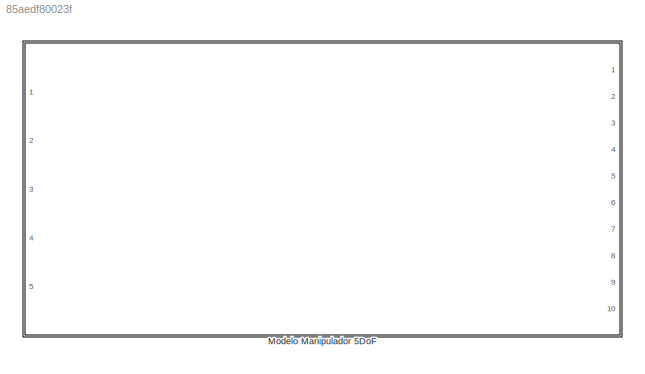
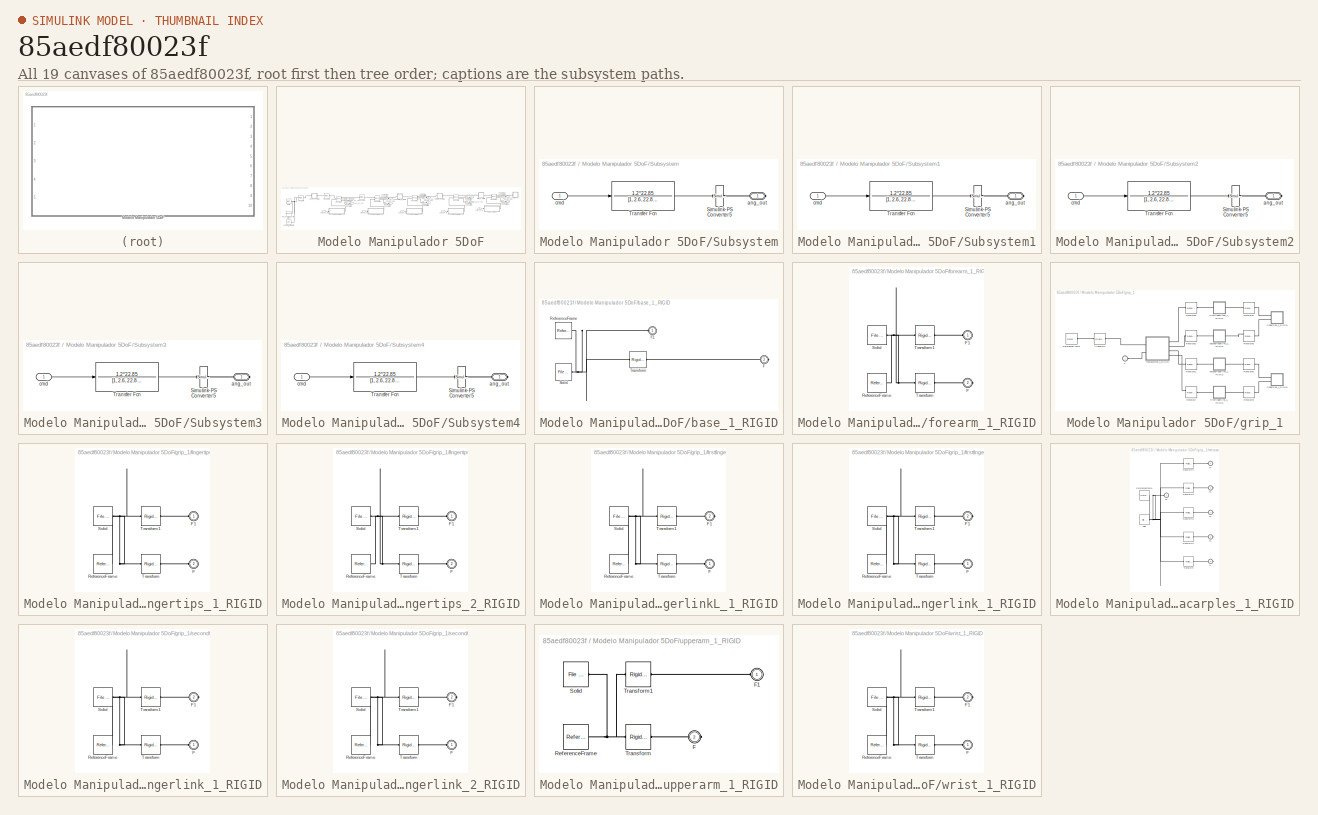
[diagram: thumbnail index - all 19 canvases of the model, root first then tree order]
MODEL slx_85aedf80023f
KIND model
CONFIG AbsTol = auto
CONFIG EnableMultiTasking = off
CONFIG FixedStep = 0.001
CONFIG MaxStep = auto
CONFIG MinStep = auto
CONFIG RelTol = 1e-3
CONFIG SampleTimeConstraint = Unconstrained
CONFIG SolverName = VariableStepAuto
CONFIG StartTime = 0.0
CONFIG StopTime = 40
WORKSPACE source: external: MATLAB File  (data not in archive)
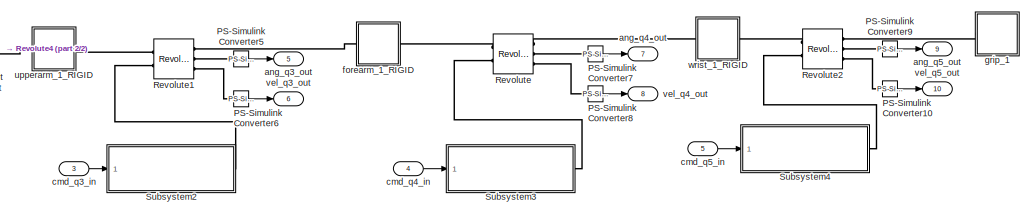
[diagram: Modelo Manipulador 5DoF - part 1/2, middle right region]
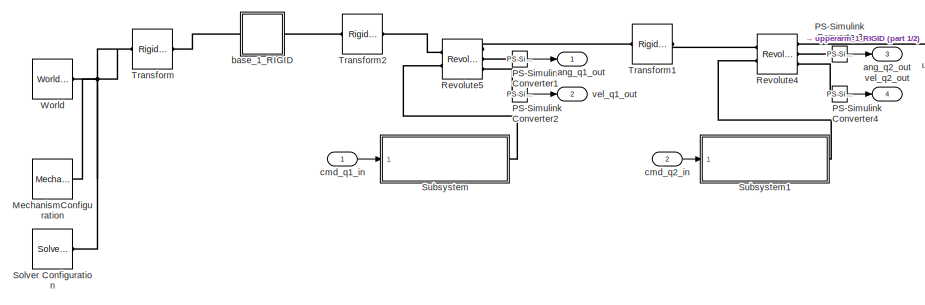
[diagram: Modelo Manipulador 5DoF - part 2/2, left side, full height]
BLOCK [SubSystem] Modelo Manipulador 5DoF
  Ports = [5, 10]
BLOCK [Reference] Modelo Manipulador 5DoF/MechanismConfiguration  REF=sm_lib/Utilities/Mechanism
Configuration
  Ports = [0, 0, 0, 0, 0, 0, 1]
  SourceBlock = sm_lib/Utilities/Mechanism\nConfiguration
  SourceType = Mechanism\nConfiguration
BLOCK [Reference] Modelo Manipulador 5DoF/PS-Simulink Converter1  REF=nesl_utility/PS-Simulink
Converter
  Ports = [0, 1, 0, 0, 0, 1]
  SourceBlock = nesl_utility/PS-Simulink\nConverter
  SourceType = PS-Simulink\nConverter
BLOCK [Reference] Modelo Manipulador 5DoF/PS-Simulink Converter10  REF=nesl_utility/PS-Simulink
Converter
  Ports = [0, 1, 0, 0, 0, 1]
  SourceBlock = nesl_utility/PS-Simulink\nConverter
  SourceType = PS-Simulink\nConverter
BLOCK [Reference] Modelo Manipulador 5DoF/PS-Simulink Converter2  REF=nesl_utility/PS-Simulink
Converter
  Ports = [0, 1, 0, 0, 0, 1]
  SourceBlock = nesl_utility/PS-Simulink\nConverter
  SourceType = PS-Simulink\nConverter
BLOCK [Reference] Modelo Manipulador 5DoF/PS-Simulink Converter3  REF=nesl_utility/PS-Simulink
Converter
  Ports = [0, 1, 0, 0, 0, 1]
  SourceBlock = nesl_utility/PS-Simulink\nConverter
  SourceType = PS-Simulink\nConverter
BLOCK [Reference] Modelo Manipulador 5DoF/PS-Simulink Converter4  REF=nesl_utility/PS-Simulink
Converter
  Ports = [0, 1, 0, 0, 0, 1]
  SourceBlock = nesl_utility/PS-Simulink\nConverter
  SourceType = PS-Simulink\nConverter
BLOCK [Reference] Modelo Manipulador 5DoF/PS-Simulink Converter5  REF=nesl_utility/PS-Simulink
Converter
  Ports = [0, 1, 0, 0, 0, 1]
  SourceBlock = nesl_utility/PS-Simulink\nConverter
  SourceType = PS-Simulink\nConverter
BLOCK [Reference] Modelo Manipulador 5DoF/PS-Simulink Converter6  REF=nesl_utility/PS-Simulink
Converter
  Ports = [0, 1, 0, 0, 0, 1]
  SourceBlock = nesl_utility/PS-Simulink\nConverter
  SourceType = PS-Simulink\nConverter
BLOCK [Reference] Modelo Manipulador 5DoF/PS-Simulink Converter7  REF=nesl_utility/PS-Simulink
Converter
  Ports = [0, 1, 0, 0, 0, 1]
  SourceBlock = nesl_utility/PS-Simulink\nConverter
  SourceType = PS-Simulink\nConverter
BLOCK [Reference] Modelo Manipulador 5DoF/PS-Simulink Converter8  REF=nesl_utility/PS-Simulink
Converter
  Ports = [0, 1, 0, 0, 0, 1]
  SourceBlock = nesl_utility/PS-Simulink\nConverter
  SourceType = PS-Simulink\nConverter
BLOCK [Reference] Modelo Manipulador 5DoF/PS-Simulink Converter9  REF=nesl_utility/PS-Simulink
Converter
  Ports = [0, 1, 0, 0, 0, 1]
  SourceBlock = nesl_utility/PS-Simulink\nConverter
  SourceType = PS-Simulink\nConverter
BLOCK [Reference] Modelo Manipulador 5DoF/Revolute  REF=sm_lib/Joints/Revolute Joint
  Ports = [0, 0, 0, 0, 0, 2, 3]
  SourceBlock = sm_lib/Joints/Revolute Joint
  SourceType = Revolute Joint
BLOCK [Reference] Modelo Manipulador 5DoF/Revolute1  REF=sm_lib/Joints/Revolute Joint
  Ports = [0, 0, 0, 0, 0, 2, 3]
  SourceBlock = sm_lib/Joints/Revolute Joint
  SourceType = Revolute Joint
BLOCK [Reference] Modelo Manipulador 5DoF/Revolute2  REF=sm_lib/Joints/Revolute Joint
  Ports = [0, 0, 0, 0, 0, 2, 3]
  SourceBlock = sm_lib/Joints/Revolute Joint
  SourceType = Revolute Joint
BLOCK [Reference] Modelo Manipulador 5DoF/Revolute4  REF=sm_lib/Joints/Revolute Joint
  Ports = [0, 0, 0, 0, 0, 2, 3]
  SourceBlock = sm_lib/Joints/Revolute Joint
  SourceType = Revolute Joint
BLOCK [Reference] Modelo Manipulador 5DoF/Revolute5  REF=sm_lib/Joints/Revolute Joint
  Ports = [0, 0, 0, 0, 0, 2, 3]
  SourceBlock = sm_lib/Joints/Revolute Joint
  SourceType = Revolute Joint
BLOCK [Reference] Modelo Manipulador 5DoF/Solver Configuration  REF=nesl_utility/Solver
Configuration
  Ports = [0, 0, 0, 0, 0, 0, 1]
  SourceBlock = nesl_utility/Solver\nConfiguration
  SourceType = Solver\nConfiguration
BLOCK [SubSystem] Modelo Manipulador 5DoF/Subsystem
  Ports = [1, 0, 0, 0, 0, 0, 1]
BLOCK [Reference] Modelo Manipulador 5DoF/Subsystem/Simulink-PS Converter5  REF=nesl_utility/Simulink-PS
Converter
  Ports = [1, 0, 0, 0, 0, 0, 1]
  SourceBlock = nesl_utility/Simulink-PS\nConverter
  SourceType = Simulink-PS\nConverter
BLOCK [TransferFcn] Modelo Manipulador 5DoF/Subsystem/Transfer Fcn
  Denominator = [1, 2.6, 22.85]
  Numerator = 1.2*22.85
BLOCK [PMIOPort] Modelo Manipulador 5DoF/Subsystem/ang_out
  Side = Right
BLOCK [Inport] Modelo Manipulador 5DoF/Subsystem/cmd
BLOCK [SubSystem] Modelo Manipulador 5DoF/Subsystem1
  Ports = [1, 0, 0, 0, 0, 0, 1]
BLOCK [Reference] Modelo Manipulador 5DoF/Subsystem1/Simulink-PS Converter5  REF=nesl_utility/Simulink-PS
Converter
  Ports = [1, 0, 0, 0, 0, 0, 1]
  SourceBlock = nesl_utility/Simulink-PS\nConverter
  SourceType = Simulink-PS\nConverter
BLOCK [TransferFcn] Modelo Manipulador 5DoF/Subsystem1/Transfer Fcn
  Denominator = [1, 2.6, 22.85]
  Numerator = 1.2*22.85
BLOCK [PMIOPort] Modelo Manipulador 5DoF/Subsystem1/ang_out
  Side = Right
BLOCK [Inport] Modelo Manipulador 5DoF/Subsystem1/cmd
BLOCK [SubSystem] Modelo Manipulador 5DoF/Subsystem2
  Ports = [1, 0, 0, 0, 0, 0, 1]
BLOCK [Reference] Modelo Manipulador 5DoF/Subsystem2/Simulink-PS Converter5  REF=nesl_utility/Simulink-PS
Converter
  Ports = [1, 0, 0, 0, 0, 0, 1]
  SourceBlock = nesl_utility/Simulink-PS\nConverter
  SourceType = Simulink-PS\nConverter
BLOCK [TransferFcn] Modelo Manipulador 5DoF/Subsystem2/Transfer Fcn
  Denominator = [1, 2.6, 22.85]
  Numerator = 1.2*22.85
BLOCK [PMIOPort] Modelo Manipulador 5DoF/Subsystem2/ang_out
  Side = Right
BLOCK [Inport] Modelo Manipulador 5DoF/Subsystem2/cmd
BLOCK [SubSystem] Modelo Manipulador 5DoF/Subsystem3
  Ports = [1, 0, 0, 0, 0, 0, 1]
BLOCK [Reference] Modelo Manipulador 5DoF/Subsystem3/Simulink-PS Converter5  REF=nesl_utility/Simulink-PS
Converter
  Ports = [1, 0, 0, 0, 0, 0, 1]
  SourceBlock = nesl_utility/Simulink-PS\nConverter
  SourceType = Simulink-PS\nConverter
BLOCK [TransferFcn] Modelo Manipulador 5DoF/Subsystem3/Transfer Fcn
  Denominator = [1, 2.6, 22.85]
  Numerator = 1.2*22.85
BLOCK [PMIOPort] Modelo Manipulador 5DoF/Subsystem3/ang_out
  Side = Right
BLOCK [Inport] Modelo Manipulador 5DoF/Subsystem3/cmd
BLOCK [SubSystem] Modelo Manipulador 5DoF/Subsystem4
  Ports = [1, 0, 0, 0, 0, 0, 1]
BLOCK [Reference] Modelo Manipulador 5DoF/Subsystem4/Simulink-PS Converter5  REF=nesl_utility/Simulink-PS
Converter
  Ports = [1, 0, 0, 0, 0, 0, 1]
  SourceBlock = nesl_utility/Simulink-PS\nConverter
  SourceType = Simulink-PS\nConverter
BLOCK [TransferFcn] Modelo Manipulador 5DoF/Subsystem4/Transfer Fcn
  Denominator = [1, 2.6, 22.85]
  Numerator = 1.2*22.85
BLOCK [PMIOPort] Modelo Manipulador 5DoF/Subsystem4/ang_out
  Side = Right
BLOCK [Inport] Modelo Manipulador 5DoF/Subsystem4/cmd
BLOCK [Reference] Modelo Manipulador 5DoF/Transform  REF=sm_lib/Frames and
Transforms/Rigid
Transform
  Ports = [0, 0, 0, 0, 0, 1, 1]
  SourceBlock = sm_lib/Frames and\nTransforms/Rigid\nTransform
  SourceType = Rigid\nTransform
BLOCK [Reference] Modelo Manipulador 5DoF/Transform1  REF=sm_lib/Frames and
Transforms/Rigid
Transform
  Ports = [0, 0, 0, 0, 0, 1, 1]
  SourceBlock = sm_lib/Frames and\nTransforms/Rigid\nTransform
  SourceType = Rigid\nTransform
BLOCK [Reference] Modelo Manipulador 5DoF/Transform2  REF=sm_lib/Frames and
Transforms/Rigid
Transform
  Ports = [0, 0, 0, 0, 0, 1, 1]
  SourceBlock = sm_lib/Frames and\nTransforms/Rigid\nTransform
  SourceType = Rigid\nTransform
BLOCK [Reference] Modelo Manipulador 5DoF/World  REF=sm_lib/Frames and
Transforms/World Frame
  Ports = [0, 0, 0, 0, 0, 0, 1]
  SourceBlock = sm_lib/Frames and\nTransforms/World Frame
  SourceType = World Frame
BLOCK [Outport] Modelo Manipulador 5DoF/ang_q1_out
BLOCK [Outport] Modelo Manipulador 5DoF/ang_q2_out
  Port = 3
BLOCK [Outport] Modelo Manipulador 5DoF/ang_q3_out
  Port = 5
BLOCK [Outport] Modelo Manipulador 5DoF/ang_q4_out
  Port = 7
BLOCK [Outport] Modelo Manipulador 5DoF/ang_q5_out
  Port = 9
BLOCK [SubSystem] Modelo Manipulador 5DoF/base_1_RIGID
  Ports = [0, 0, 0, 0, 0, 1, 1]
BLOCK [PMIOPort] Modelo Manipulador 5DoF/base_1_RIGID/F
  Port = 2
  Side = Right
BLOCK [PMIOPort] Modelo Manipulador 5DoF/base_1_RIGID/F1
  Side = Left
BLOCK [Reference] Modelo Manipulador 5DoF/base_1_RIGID/ReferenceFrame  REF=sm_lib/Frames and
Transforms/Reference
Frame
  Ports = [0, 0, 0, 0, 0, 0, 1]
  SourceBlock = sm_lib/Frames and\nTransforms/Reference\nFrame
  SourceType = Reference\nFrame
BLOCK [Reference] Modelo Manipulador 5DoF/base_1_RIGID/Solid  REF=sm_lib/Body Elements/File Solid
  Ports = [0, 0, 0, 0, 0, 0, 1]
  SourceBlock = sm_lib/Body Elements/File Solid
  SourceType = File Solid
BLOCK [Reference] Modelo Manipulador 5DoF/base_1_RIGID/Transform  REF=sm_lib/Frames and
Transforms/Rigid
Transform
  Ports = [0, 0, 0, 0, 0, 1, 1]
  SourceBlock = sm_lib/Frames and\nTransforms/Rigid\nTransform
  SourceType = Rigid\nTransform
BLOCK [Inport] Modelo Manipulador 5DoF/cmd_q1_in
BLOCK [Inport] Modelo Manipulador 5DoF/cmd_q2_in
  Port = 2
BLOCK [Inport] Modelo Manipulador 5DoF/cmd_q3_in
  Port = 3
BLOCK [Inport] Modelo Manipulador 5DoF/cmd_q4_in
  Port = 4
BLOCK [Inport] Modelo Manipulador 5DoF/cmd_q5_in
  Port = 5
BLOCK [SubSystem] Modelo Manipulador 5DoF/forearm_1_RIGID
  Ports = [0, 0, 0, 0, 0, 1, 1]
BLOCK [PMIOPort] Modelo Manipulador 5DoF/forearm_1_RIGID/F
  Port = 2
  Side = Right
BLOCK [PMIOPort] Modelo Manipulador 5DoF/forearm_1_RIGID/F1
  Side = Left
BLOCK [Reference] Modelo Manipulador 5DoF/forearm_1_RIGID/ReferenceFrame  REF=sm_lib/Frames and
Transforms/Reference
Frame
  Ports = [0, 0, 0, 0, 0, 0, 1]
  SourceBlock = sm_lib/Frames and\nTransforms/Reference\nFrame
  SourceType = Reference\nFrame
BLOCK [Reference] Modelo Manipulador 5DoF/forearm_1_RIGID/Solid  REF=sm_lib/Body Elements/File Solid
  Ports = [0, 0, 0, 0, 0, 0, 1]
  SourceBlock = sm_lib/Body Elements/File Solid
  SourceType = File Solid
BLOCK [Reference] Modelo Manipulador 5DoF/forearm_1_RIGID/Transform  REF=sm_lib/Frames and
Transforms/Rigid
Transform
  Ports = [0, 0, 0, 0, 0, 1, 1]
  SourceBlock = sm_lib/Frames and\nTransforms/Rigid\nTransform
  SourceType = Rigid\nTransform
BLOCK [Reference] Modelo Manipulador 5DoF/forearm_1_RIGID/Transform1  REF=sm_lib/Frames and
Transforms/Rigid
Transform
  Ports = [0, 0, 0, 0, 0, 1, 1]
  SourceBlock = sm_lib/Frames and\nTransforms/Rigid\nTransform
  SourceType = Rigid\nTransform
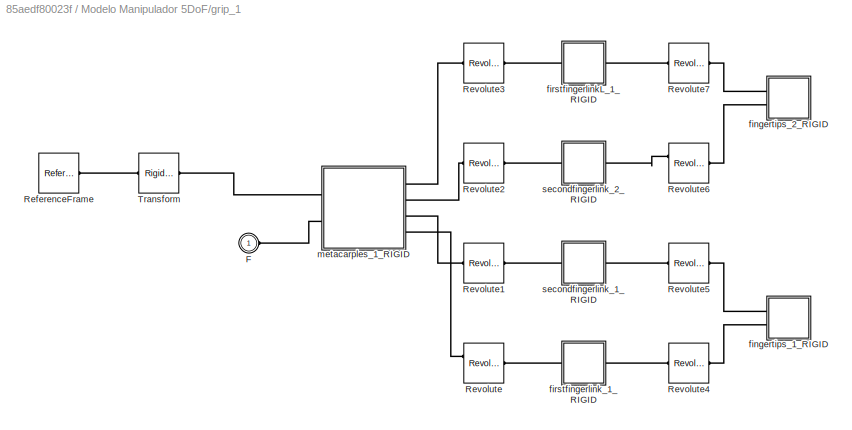
BLOCK [SubSystem] Modelo Manipulador 5DoF/grip_1
  Ports = [0, 0, 0, 0, 0, 1]
BLOCK [PMIOPort] Modelo Manipulador 5DoF/grip_1/F
  Side = Left
BLOCK [Reference] Modelo Manipulador 5DoF/grip_1/ReferenceFrame  REF=sm_lib/Frames and
Transforms/Reference
Frame
  Ports = [0, 0, 0, 0, 0, 0, 1]
  SourceBlock = sm_lib/Frames and\nTransforms/Reference\nFrame
  SourceType = Reference\nFrame
BLOCK [Reference] Modelo Manipulador 5DoF/grip_1/Revolute  REF=sm_lib/Joints/Revolute Joint
  Ports = [0, 0, 0, 0, 0, 2, 1]
  SourceBlock = sm_lib/Joints/Revolute Joint
  SourceType = Revolute Joint
BLOCK [Reference] Modelo Manipulador 5DoF/grip_1/Revolute1  REF=sm_lib/Joints/Revolute Joint
  Ports = [0, 0, 0, 0, 0, 1, 1]
  SourceBlock = sm_lib/Joints/Revolute Joint
  SourceType = Revolute Joint
BLOCK [Reference] Modelo Manipulador 5DoF/grip_1/Revolute2  REF=sm_lib/Joints/Revolute Joint
  Ports = [0, 0, 0, 0, 0, 1, 1]
  SourceBlock = sm_lib/Joints/Revolute Joint
  SourceType = Revolute Joint
BLOCK [Reference] Modelo Manipulador 5DoF/grip_1/Revolute3  REF=sm_lib/Joints/Revolute Joint
  Ports = [0, 0, 0, 0, 0, 1, 1]
  SourceBlock = sm_lib/Joints/Revolute Joint
  SourceType = Revolute Joint
BLOCK [Reference] Modelo Manipulador 5DoF/grip_1/Revolute4  REF=sm_lib/Joints/Revolute Joint
  Ports = [0, 0, 0, 0, 0, 1, 1]
  SourceBlock = sm_lib/Joints/Revolute Joint
  SourceType = Revolute Joint
BLOCK [Reference] Modelo Manipulador 5DoF/grip_1/Revolute5  REF=sm_lib/Joints/Revolute Joint
  Ports = [0, 0, 0, 0, 0, 1, 1]
  SourceBlock = sm_lib/Joints/Revolute Joint
  SourceType = Revolute Joint
BLOCK [Reference] Modelo Manipulador 5DoF/grip_1/Revolute6  REF=sm_lib/Joints/Revolute Joint
  Ports = [0, 0, 0, 0, 0, 2, 1]
  SourceBlock = sm_lib/Joints/Revolute Joint
  SourceType = Revolute Joint
BLOCK [Reference] Modelo Manipulador 5DoF/grip_1/Revolute7  REF=sm_lib/Joints/Revolute Joint
  Ports = [0, 0, 0, 0, 0, 1, 1]
  SourceBlock = sm_lib/Joints/Revolute Joint
  SourceType = Revolute Joint
BLOCK [Reference] Modelo Manipulador 5DoF/grip_1/Transform  REF=sm_lib/Frames and
Transforms/Rigid
Transform
  Ports = [0, 0, 0, 0, 0, 1, 1]
  SourceBlock = sm_lib/Frames and\nTransforms/Rigid\nTransform
  SourceType = Rigid\nTransform
BLOCK [SubSystem] Modelo Manipulador 5DoF/grip_1/fingertips_1_RIGID
  Ports = [0, 0, 0, 0, 0, 2]
BLOCK [PMIOPort] Modelo Manipulador 5DoF/grip_1/fingertips_1_RIGID/F
  Port = 2
  Side = Left
BLOCK [PMIOPort] Modelo Manipulador 5DoF/grip_1/fingertips_1_RIGID/F1
  Side = Left
BLOCK [Reference] Modelo Manipulador 5DoF/grip_1/fingertips_1_RIGID/ReferenceFrame  REF=sm_lib/Frames and
Transforms/Reference
Frame
  Ports = [0, 0, 0, 0, 0, 0, 1]
  SourceBlock = sm_lib/Frames and\nTransforms/Reference\nFrame
  SourceType = Reference\nFrame
BLOCK [Reference] Modelo Manipulador 5DoF/grip_1/fingertips_1_RIGID/Solid  REF=sm_lib/Body Elements/File Solid
  Ports = [0, 0, 0, 0, 0, 0, 1]
  SourceBlock = sm_lib/Body Elements/File Solid
  SourceType = File Solid
BLOCK [Reference] Modelo Manipulador 5DoF/grip_1/fingertips_1_RIGID/Transform  REF=sm_lib/Frames and
Transforms/Rigid
Transform
  Ports = [0, 0, 0, 0, 0, 1, 1]
  SourceBlock = sm_lib/Frames and\nTransforms/Rigid\nTransform
  SourceType = Rigid\nTransform
BLOCK [Reference] Modelo Manipulador 5DoF/grip_1/fingertips_1_RIGID/Transform1  REF=sm_lib/Frames and
Transforms/Rigid
Transform
  Ports = [0, 0, 0, 0, 0, 1, 1]
  SourceBlock = sm_lib/Frames and\nTransforms/Rigid\nTransform
  SourceType = Rigid\nTransform
BLOCK [SubSystem] Modelo Manipulador 5DoF/grip_1/fingertips_2_RIGID
  Ports = [0, 0, 0, 0, 0, 2]
BLOCK [PMIOPort] Modelo Manipulador 5DoF/grip_1/fingertips_2_RIGID/F
  Port = 2
  Side = Left
BLOCK [PMIOPort] Modelo Manipulador 5DoF/grip_1/fingertips_2_RIGID/F1
  Side = Left
BLOCK [Reference] Modelo Manipulador 5DoF/grip_1/fingertips_2_RIGID/ReferenceFrame  REF=sm_lib/Frames and
Transforms/Reference
Frame
  Ports = [0, 0, 0, 0, 0, 0, 1]
  SourceBlock = sm_lib/Frames and\nTransforms/Reference\nFrame
  SourceType = Reference\nFrame
BLOCK [Reference] Modelo Manipulador 5DoF/grip_1/fingertips_2_RIGID/Solid  REF=sm_lib/Body Elements/File Solid
  Ports = [0, 0, 0, 0, 0, 0, 1]
  SourceBlock = sm_lib/Body Elements/File Solid
  SourceType = File Solid
BLOCK [Reference] Modelo Manipulador 5DoF/grip_1/fingertips_2_RIGID/Transform  REF=sm_lib/Frames and
Transforms/Rigid
Transform
  Ports = [0, 0, 0, 0, 0, 1, 1]
  SourceBlock = sm_lib/Frames and\nTransforms/Rigid\nTransform
  SourceType = Rigid\nTransform
BLOCK [Reference] Modelo Manipulador 5DoF/grip_1/fingertips_2_RIGID/Transform1  REF=sm_lib/Frames and
Transforms/Rigid
Transform
  Ports = [0, 0, 0, 0, 0, 1, 1]
  SourceBlock = sm_lib/Frames and\nTransforms/Rigid\nTransform
  SourceType = Rigid\nTransform
BLOCK [SubSystem] Modelo Manipulador 5DoF/grip_1/firstfingerlinkL_1_RIGID
  Ports = [0, 0, 0, 0, 0, 1, 1]
BLOCK [PMIOPort] Modelo Manipulador 5DoF/grip_1/firstfingerlinkL_1_RIGID/F
  Side = Left
BLOCK [PMIOPort] Modelo Manipulador 5DoF/grip_1/firstfingerlinkL_1_RIGID/F1
  Port = 2
  Side = Right
BLOCK [Reference] Modelo Manipulador 5DoF/grip_1/firstfingerlinkL_1_RIGID/ReferenceFrame  REF=sm_lib/Frames and
Transforms/Reference
Frame
  Ports = [0, 0, 0, 0, 0, 0, 1]
  SourceBlock = sm_lib/Frames and\nTransforms/Reference\nFrame
  SourceType = Reference\nFrame
BLOCK [Reference] Modelo Manipulador 5DoF/grip_1/firstfingerlinkL_1_RIGID/Solid  REF=sm_lib/Body Elements/File Solid
  Ports = [0, 0, 0, 0, 0, 0, 1]
  SourceBlock = sm_lib/Body Elements/File Solid
  SourceType = File Solid
BLOCK [Reference] Modelo Manipulador 5DoF/grip_1/firstfingerlinkL_1_RIGID/Transform  REF=sm_lib/Frames and
Transforms/Rigid
Transform
  Ports = [0, 0, 0, 0, 0, 1, 1]
  SourceBlock = sm_lib/Frames and\nTransforms/Rigid\nTransform
  SourceType = Rigid\nTransform
BLOCK [Reference] Modelo Manipulador 5DoF/grip_1/firstfingerlinkL_1_RIGID/Transform1  REF=sm_lib/Frames and
Transforms/Rigid
Transform
  Ports = [0, 0, 0, 0, 0, 1, 1]
  SourceBlock = sm_lib/Frames and\nTransforms/Rigid\nTransform
  SourceType = Rigid\nTransform
BLOCK [SubSystem] Modelo Manipulador 5DoF/grip_1/firstfingerlink_1_RIGID
  Ports = [0, 0, 0, 0, 0, 1, 1]
BLOCK [PMIOPort] Modelo Manipulador 5DoF/grip_1/firstfingerlink_1_RIGID/F
  Side = Left
BLOCK [PMIOPort] Modelo Manipulador 5DoF/grip_1/firstfingerlink_1_RIGID/F1
  Port = 2
  Side = Right
BLOCK [Reference] Modelo Manipulador 5DoF/grip_1/firstfingerlink_1_RIGID/ReferenceFrame  REF=sm_lib/Frames and
Transforms/Reference
Frame
  Ports = [0, 0, 0, 0, 0, 0, 1]
  SourceBlock = sm_lib/Frames and\nTransforms/Reference\nFrame
  SourceType = Reference\nFrame
BLOCK [Reference] Modelo Manipulador 5DoF/grip_1/firstfingerlink_1_RIGID/Solid  REF=sm_lib/Body Elements/File Solid
  Ports = [0, 0, 0, 0, 0, 0, 1]
  SourceBlock = sm_lib/Body Elements/File Solid
  SourceType = File Solid
BLOCK [Reference] Modelo Manipulador 5DoF/grip_1/firstfingerlink_1_RIGID/Transform  REF=sm_lib/Frames and
Transforms/Rigid
Transform
  Ports = [0, 0, 0, 0, 0, 1, 1]
  SourceBlock = sm_lib/Frames and\nTransforms/Rigid\nTransform
  SourceType = Rigid\nTransform
BLOCK [Reference] Modelo Manipulador 5DoF/grip_1/firstfingerlink_1_RIGID/Transform1  REF=sm_lib/Frames and
Transforms/Rigid
Transform
  Ports = [0, 0, 0, 0, 0, 1, 1]
  SourceBlock = sm_lib/Frames and\nTransforms/Rigid\nTransform
  SourceType = Rigid\nTransform
BLOCK [SubSystem] Modelo Manipulador 5DoF/grip_1/metacarples_1_RIGID
  Ports = [0, 0, 0, 0, 0, 2, 4]
BLOCK [PMIOPort] Modelo Manipulador 5DoF/grip_1/metacarples_1_RIGID/F
  Port = 6
  Side = Right
BLOCK [PMIOPort] Modelo Manipulador 5DoF/grip_1/metacarples_1_RIGID/F1
  Port = 5
  Side = Right
BLOCK [PMIOPort] Modelo Manipulador 5DoF/grip_1/metacarples_1_RIGID/F2
  Port = 4
  Side = Right
BLOCK [PMIOPort] Modelo Manipulador 5DoF/grip_1/metacarples_1_RIGID/F3
  Port = 3
  Side = Right
BLOCK [PMIOPort] Modelo Manipulador 5DoF/grip_1/metacarples_1_RIGID/F4
  Port = 2
  Side = Left
BLOCK [PMIOPort] Modelo Manipulador 5DoF/grip_1/metacarples_1_RIGID/F5
  Side = Left
BLOCK [Reference] Modelo Manipulador 5DoF/grip_1/metacarples_1_RIGID/ReferenceFrame  REF=sm_lib/Frames and
Transforms/Reference
Frame
  Ports = [0, 0, 0, 0, 0, 0, 1]
  SourceBlock = sm_lib/Frames and\nTransforms/Reference\nFrame
  SourceType = Reference\nFrame
BLOCK [Reference] Modelo Manipulador 5DoF/grip_1/metacarples_1_RIGID/Solid  REF=sm_lib/Body Elements/File Solid
  Ports = [0, 0, 0, 0, 0, 0, 1]
  SourceBlock = sm_lib/Body Elements/File Solid
  SourceType = File Solid
BLOCK [Reference] Modelo Manipulador 5DoF/grip_1/metacarples_1_RIGID/Transform  REF=sm_lib/Frames and
Transforms/Rigid
Transform
  Ports = [0, 0, 0, 0, 0, 1, 1]
  SourceBlock = sm_lib/Frames and\nTransforms/Rigid\nTransform
  SourceType = Rigid\nTransform
BLOCK [Reference] Modelo Manipulador 5DoF/grip_1/metacarples_1_RIGID/Transform1  REF=sm_lib/Frames and
Transforms/Rigid
Transform
  Ports = [0, 0, 0, 0, 0, 1, 1]
  SourceBlock = sm_lib/Frames and\nTransforms/Rigid\nTransform
  SourceType = Rigid\nTransform
BLOCK [Reference] Modelo Manipulador 5DoF/grip_1/metacarples_1_RIGID/Transform2  REF=sm_lib/Frames and
Transforms/Rigid
Transform
  Ports = [0, 0, 0, 0, 0, 1, 1]
  SourceBlock = sm_lib/Frames and\nTransforms/Rigid\nTransform
  SourceType = Rigid\nTransform
BLOCK [Reference] Modelo Manipulador 5DoF/grip_1/metacarples_1_RIGID/Transform3  REF=sm_lib/Frames and
Transforms/Rigid
Transform
  Ports = [0, 0, 0, 0, 0, 1, 1]
  SourceBlock = sm_lib/Frames and\nTransforms/Rigid\nTransform
  SourceType = Rigid\nTransform
BLOCK [Reference] Modelo Manipulador 5DoF/grip_1/metacarples_1_RIGID/Transform4  REF=sm_lib/Frames and
Transforms/Rigid
Transform
  Ports = [0, 0, 0, 0, 0, 1, 1]
  SourceBlock = sm_lib/Frames and\nTransforms/Rigid\nTransform
  SourceType = Rigid\nTransform
BLOCK [SubSystem] Modelo Manipulador 5DoF/grip_1/secondfingerlink_1_RIGID
  Ports = [0, 0, 0, 0, 0, 1, 1]
BLOCK [PMIOPort] Modelo Manipulador 5DoF/grip_1/secondfingerlink_1_RIGID/F
  Side = Left
BLOCK [PMIOPort] Modelo Manipulador 5DoF/grip_1/secondfingerlink_1_RIGID/F1
  Port = 2
  Side = Right
BLOCK [Reference] Modelo Manipulador 5DoF/grip_1/secondfingerlink_1_RIGID/ReferenceFrame  REF=sm_lib/Frames and
Transforms/Reference
Frame
  Ports = [0, 0, 0, 0, 0, 0, 1]
  SourceBlock = sm_lib/Frames and\nTransforms/Reference\nFrame
  SourceType = Reference\nFrame
BLOCK [Reference] Modelo Manipulador 5DoF/grip_1/secondfingerlink_1_RIGID/Solid  REF=sm_lib/Body Elements/File Solid
  Ports = [0, 0, 0, 0, 0, 0, 1]
  SourceBlock = sm_lib/Body Elements/File Solid
  SourceType = File Solid
BLOCK [Reference] Modelo Manipulador 5DoF/grip_1/secondfingerlink_1_RIGID/Transform  REF=sm_lib/Frames and
Transforms/Rigid
Transform
  Ports = [0, 0, 0, 0, 0, 1, 1]
  SourceBlock = sm_lib/Frames and\nTransforms/Rigid\nTransform
  SourceType = Rigid\nTransform
BLOCK [Reference] Modelo Manipulador 5DoF/grip_1/secondfingerlink_1_RIGID/Transform1  REF=sm_lib/Frames and
Transforms/Rigid
Transform
  Ports = [0, 0, 0, 0, 0, 1, 1]
  SourceBlock = sm_lib/Frames and\nTransforms/Rigid\nTransform
  SourceType = Rigid\nTransform
BLOCK [SubSystem] Modelo Manipulador 5DoF/grip_1/secondfingerlink_2_RIGID
  Ports = [0, 0, 0, 0, 0, 1, 1]
BLOCK [PMIOPort] Modelo Manipulador 5DoF/grip_1/secondfingerlink_2_RIGID/F
  Side = Left
BLOCK [PMIOPort] Modelo Manipulador 5DoF/grip_1/secondfingerlink_2_RIGID/F1
  Port = 2
  Side = Right
BLOCK [Reference] Modelo Manipulador 5DoF/grip_1/secondfingerlink_2_RIGID/ReferenceFrame  REF=sm_lib/Frames and
Transforms/Reference
Frame
  Ports = [0, 0, 0, 0, 0, 0, 1]
  SourceBlock = sm_lib/Frames and\nTransforms/Reference\nFrame
  SourceType = Reference\nFrame
BLOCK [Reference] Modelo Manipulador 5DoF/grip_1/secondfingerlink_2_RIGID/Solid  REF=sm_lib/Body Elements/File Solid
  Ports = [0, 0, 0, 0, 0, 0, 1]
  SourceBlock = sm_lib/Body Elements/File Solid
  SourceType = File Solid
BLOCK [Reference] Modelo Manipulador 5DoF/grip_1/secondfingerlink_2_RIGID/Transform  REF=sm_lib/Frames and
Transforms/Rigid
Transform
  Ports = [0, 0, 0, 0, 0, 1, 1]
  SourceBlock = sm_lib/Frames and\nTransforms/Rigid\nTransform
  SourceType = Rigid\nTransform
BLOCK [Reference] Modelo Manipulador 5DoF/grip_1/secondfingerlink_2_RIGID/Transform1  REF=sm_lib/Frames and
Transforms/Rigid
Transform
  Ports = [0, 0, 0, 0, 0, 1, 1]
  SourceBlock = sm_lib/Frames and\nTransforms/Rigid\nTransform
  SourceType = Rigid\nTransform
BLOCK [SubSystem] Modelo Manipulador 5DoF/upperarm_1_RIGID
  Ports = [0, 0, 0, 0, 0, 1, 1]
BLOCK [PMIOPort] Modelo Manipulador 5DoF/upperarm_1_RIGID/F
  Port = 2
  Side = Right
BLOCK [PMIOPort] Modelo Manipulador 5DoF/upperarm_1_RIGID/F1
  Side = Left
BLOCK [Reference] Modelo Manipulador 5DoF/upperarm_1_RIGID/ReferenceFrame  REF=sm_lib/Frames and
Transforms/Reference
Frame
  Ports = [0, 0, 0, 0, 0, 0, 1]
  SourceBlock = sm_lib/Frames and\nTransforms/Reference\nFrame
  SourceType = Reference\nFrame
BLOCK [Reference] Modelo Manipulador 5DoF/upperarm_1_RIGID/Solid  REF=sm_lib/Body Elements/File Solid
  Ports = [0, 0, 0, 0, 0, 0, 1]
  SourceBlock = sm_lib/Body Elements/File Solid
  SourceType = File Solid
BLOCK [Reference] Modelo Manipulador 5DoF/upperarm_1_RIGID/Transform  REF=sm_lib/Frames and
Transforms/Rigid
Transform
  Ports = [0, 0, 0, 0, 0, 1, 1]
  SourceBlock = sm_lib/Frames and\nTransforms/Rigid\nTransform
  SourceType = Rigid\nTransform
BLOCK [Reference] Modelo Manipulador 5DoF/upperarm_1_RIGID/Transform1  REF=sm_lib/Frames and
Transforms/Rigid
Transform
  Ports = [0, 0, 0, 0, 0, 1, 1]
  SourceBlock = sm_lib/Frames and\nTransforms/Rigid\nTransform
  SourceType = Rigid\nTransform
BLOCK [Outport] Modelo Manipulador 5DoF/vel_q1_out
  Port = 2
BLOCK [Outport] Modelo Manipulador 5DoF/vel_q2_out
  Port = 4
BLOCK [Outport] Modelo Manipulador 5DoF/vel_q3_out
  Port = 6
BLOCK [Outport] Modelo Manipulador 5DoF/vel_q4_out
  Port = 8
BLOCK [Outport] Modelo Manipulador 5DoF/vel_q5_out
  Port = 10
BLOCK [SubSystem] Modelo Manipulador 5DoF/wrist_1_RIGID
  Ports = [0, 0, 0, 0, 0, 1, 1]
BLOCK [PMIOPort] Modelo Manipulador 5DoF/wrist_1_RIGID/F
  Side = Left
BLOCK [PMIOPort] Modelo Manipulador 5DoF/wrist_1_RIGID/F1
  Port = 2
  Side = Right
BLOCK [Reference] Modelo Manipulador 5DoF/wrist_1_RIGID/ReferenceFrame  REF=sm_lib/Frames and
Transforms/Reference
Frame
  Ports = [0, 0, 0, 0, 0, 0, 1]
  SourceBlock = sm_lib/Frames and\nTransforms/Reference\nFrame
  SourceType = Reference\nFrame
BLOCK [Reference] Modelo Manipulador 5DoF/wrist_1_RIGID/Solid  REF=sm_lib/Body Elements/File Solid
  Ports = [0, 0, 0, 0, 0, 0, 1]
  SourceBlock = sm_lib/Body Elements/File Solid
  SourceType = File Solid
BLOCK [Reference] Modelo Manipulador 5DoF/wrist_1_RIGID/Transform  REF=sm_lib/Frames and
Transforms/Rigid
Transform
  Ports = [0, 0, 0, 0, 0, 1, 1]
  SourceBlock = sm_lib/Frames and\nTransforms/Rigid\nTransform
  SourceType = Rigid\nTransform
BLOCK [Reference] Modelo Manipulador 5DoF/wrist_1_RIGID/Transform1  REF=sm_lib/Frames and
Transforms/Rigid
Transform
  Ports = [0, 0, 0, 0, 0, 1, 1]
  SourceBlock = sm_lib/Frames and\nTransforms/Rigid\nTransform
  SourceType = Rigid\nTransform
LINE Modelo Manipulador 5DoF/PS-Simulink Converter10:1 -> Modelo Manipulador 5DoF/vel_q5_out:1
LINE Modelo Manipulador 5DoF/PS-Simulink Converter1:1 -> Modelo Manipulador 5DoF/ang_q1_out:1
LINE Modelo Manipulador 5DoF/PS-Simulink Converter2:1 -> Modelo Manipulador 5DoF/vel_q1_out:1
LINE Modelo Manipulador 5DoF/PS-Simulink Converter3:1 -> Modelo Manipulador 5DoF/ang_q2_out:1
LINE Modelo Manipulador 5DoF/PS-Simulink Converter4:1 -> Modelo Manipulador 5DoF/vel_q2_out:1
LINE Modelo Manipulador 5DoF/PS-Simulink Converter5:1 -> Modelo Manipulador 5DoF/ang_q3_out:1
LINE Modelo Manipulador 5DoF/PS-Simulink Converter6:1 -> Modelo Manipulador 5DoF/vel_q3_out:1
LINE Modelo Manipulador 5DoF/PS-Simulink Converter7:1 -> Modelo Manipulador 5DoF/ang_q4_out:1
LINE Modelo Manipulador 5DoF/PS-Simulink Converter8:1 -> Modelo Manipulador 5DoF/vel_q4_out:1
LINE Modelo Manipulador 5DoF/PS-Simulink Converter9:1 -> Modelo Manipulador 5DoF/ang_q5_out:1
LINE Modelo Manipulador 5DoF/Subsystem/Transfer Fcn:1 -> Modelo Manipulador 5DoF/Subsystem/Simulink-PS Converter5:1
LINE Modelo Manipulador 5DoF/Subsystem/cmd:1 -> Modelo Manipulador 5DoF/Subsystem/Transfer Fcn:1
LINE Modelo Manipulador 5DoF/Subsystem1/Transfer Fcn:1 -> Modelo Manipulador 5DoF/Subsystem1/Simulink-PS Converter5:1
LINE Modelo Manipulador 5DoF/Subsystem1/cmd:1 -> Modelo Manipulador 5DoF/Subsystem1/Transfer Fcn:1
LINE Modelo Manipulador 5DoF/Subsystem2/Transfer Fcn:1 -> Modelo Manipulador 5DoF/Subsystem2/Simulink-PS Converter5:1
LINE Modelo Manipulador 5DoF/Subsystem2/cmd:1 -> Modelo Manipulador 5DoF/Subsystem2/Transfer Fcn:1
LINE Modelo Manipulador 5DoF/Subsystem3/Transfer Fcn:1 -> Modelo Manipulador 5DoF/Subsystem3/Simulink-PS Converter5:1
LINE Modelo Manipulador 5DoF/Subsystem3/cmd:1 -> Modelo Manipulador 5DoF/Subsystem3/Transfer Fcn:1
LINE Modelo Manipulador 5DoF/Subsystem4/Transfer Fcn:1 -> Modelo Manipulador 5DoF/Subsystem4/Simulink-PS Converter5:1
LINE Modelo Manipulador 5DoF/Subsystem4/cmd:1 -> Modelo Manipulador 5DoF/Subsystem4/Transfer Fcn:1
LINE Modelo Manipulador 5DoF/cmd_q1_in:1 -> Modelo Manipulador 5DoF/Subsystem:1
LINE Modelo Manipulador 5DoF/cmd_q2_in:1 -> Modelo Manipulador 5DoF/Subsystem1:1
LINE Modelo Manipulador 5DoF/cmd_q3_in:1 -> Modelo Manipulador 5DoF/Subsystem2:1
LINE Modelo Manipulador 5DoF/cmd_q4_in:1 -> Modelo Manipulador 5DoF/Subsystem3:1
LINE Modelo Manipulador 5DoF/cmd_q5_in:1 -> Modelo Manipulador 5DoF/Subsystem4:1
PNET net1: Modelo Manipulador 5DoF/MechanismConfiguration:RConn1 -- Modelo Manipulador 5DoF/Solver Configuration:RConn1 -- Modelo Manipulador 5DoF/Transform:LConn1 -- Modelo Manipulador 5DoF/World:RConn1
PLINE Modelo Manipulador 5DoF/PS-Simulink Converter10:LConn1 -- Modelo Manipulador 5DoF/Revolute2:RConn3
PLINE Modelo Manipulador 5DoF/PS-Simulink Converter1:LConn1 -- Modelo Manipulador 5DoF/Revolute5:RConn2
PLINE Modelo Manipulador 5DoF/PS-Simulink Converter2:LConn1 -- Modelo Manipulador 5DoF/Revolute5:RConn3
PLINE Modelo Manipulador 5DoF/PS-Simulink Converter3:LConn1 -- Modelo Manipulador 5DoF/Revolute4:RConn2
PLINE Modelo Manipulador 5DoF/PS-Simulink Converter4:LConn1 -- Modelo Manipulador 5DoF/Revolute4:RConn3
PLINE Modelo Manipulador 5DoF/PS-Simulink Converter5:LConn1 -- Modelo Manipulador 5DoF/Revolute1:RConn2
PLINE Modelo Manipulador 5DoF/PS-Simulink Converter6:LConn1 -- Modelo Manipulador 5DoF/Revolute1:RConn3
PLINE Modelo Manipulador 5DoF/PS-Simulink Converter7:LConn1 -- Modelo Manipulador 5DoF/Revolute:RConn2
PLINE Modelo Manipulador 5DoF/PS-Simulink Converter8:LConn1 -- Modelo Manipulador 5DoF/Revolute:RConn3
PLINE Modelo Manipulador 5DoF/PS-Simulink Converter9:LConn1 -- Modelo Manipulador 5DoF/Revolute2:RConn2
PLINE Modelo Manipulador 5DoF/Revolute1:LConn1 -- Modelo Manipulador 5DoF/upperarm_1_RIGID:RConn1
PLINE Modelo Manipulador 5DoF/Revolute1:LConn2 -- Modelo Manipulador 5DoF/Subsystem2:RConn1
PLINE Modelo Manipulador 5DoF/Revolute1:RConn1 -- Modelo Manipulador 5DoF/forearm_1_RIGID:LConn1
PLINE Modelo Manipulador 5DoF/Revolute2:LConn1 -- Modelo Manipulador 5DoF/wrist_1_RIGID:RConn1
PLINE Modelo Manipulador 5DoF/Revolute2:LConn2 -- Modelo Manipulador 5DoF/Subsystem4:RConn1
PLINE Modelo Manipulador 5DoF/Revolute2:RConn1 -- Modelo Manipulador 5DoF/grip_1:LConn1
PLINE Modelo Manipulador 5DoF/Revolute4:LConn1 -- Modelo Manipulador 5DoF/Transform1:RConn1
PLINE Modelo Manipulador 5DoF/Revolute4:LConn2 -- Modelo Manipulador 5DoF/Subsystem1:RConn1
PLINE Modelo Manipulador 5DoF/Revolute4:RConn1 -- Modelo Manipulador 5DoF/upperarm_1_RIGID:LConn1
PLINE Modelo Manipulador 5DoF/Revolute5:LConn1 -- Modelo Manipulador 5DoF/Transform2:RConn1
PLINE Modelo Manipulador 5DoF/Revolute5:LConn2 -- Modelo Manipulador 5DoF/Subsystem:RConn1
PLINE Modelo Manipulador 5DoF/Revolute5:RConn1 -- Modelo Manipulador 5DoF/Transform1:LConn1
PLINE Modelo Manipulador 5DoF/Revolute:LConn1 -- Modelo Manipulador 5DoF/forearm_1_RIGID:RConn1
PLINE Modelo Manipulador 5DoF/Revolute:LConn2 -- Modelo Manipulador 5DoF/Subsystem3:RConn1
PLINE Modelo Manipulador 5DoF/Revolute:RConn1 -- Modelo Manipulador 5DoF/wrist_1_RIGID:LConn1
PLINE Modelo Manipulador 5DoF/Subsystem/Simulink-PS Converter5:RConn1 -- Modelo Manipulador 5DoF/Subsystem/ang_out:RConn1
PLINE Modelo Manipulador 5DoF/Subsystem1/Simulink-PS Converter5:RConn1 -- Modelo Manipulador 5DoF/Subsystem1/ang_out:RConn1
PLINE Modelo Manipulador 5DoF/Subsystem2/Simulink-PS Converter5:RConn1 -- Modelo Manipulador 5DoF/Subsystem2/ang_out:RConn1
PLINE Modelo Manipulador 5DoF/Subsystem3/Simulink-PS Converter5:RConn1 -- Modelo Manipulador 5DoF/Subsystem3/ang_out:RConn1
PLINE Modelo Manipulador 5DoF/Subsystem4/Simulink-PS Converter5:RConn1 -- Modelo Manipulador 5DoF/Subsystem4/ang_out:RConn1
PLINE Modelo Manipulador 5DoF/Transform2:LConn1 -- Modelo Manipulador 5DoF/base_1_RIGID:RConn1
PLINE Modelo Manipulador 5DoF/Transform:RConn1 -- Modelo Manipulador 5DoF/base_1_RIGID:LConn1
PNET net2: Modelo Manipulador 5DoF/base_1_RIGID/F1:RConn1 -- Modelo Manipulador 5DoF/base_1_RIGID/ReferenceFrame:RConn1 -- Modelo Manipulador 5DoF/base_1_RIGID/Solid:RConn1 -- Modelo Manipulador 5DoF/base_1_RIGID/Transform:LConn1
PLINE Modelo Manipulador 5DoF/base_1_RIGID/F:RConn1 -- Modelo Manipulador 5DoF/base_1_RIGID/Transform:RConn1
PLINE Modelo Manipulador 5DoF/forearm_1_RIGID/F1:RConn1 -- Modelo Manipulador 5DoF/forearm_1_RIGID/Transform1:RConn1
PLINE Modelo Manipulador 5DoF/forearm_1_RIGID/F:RConn1 -- Modelo Manipulador 5DoF/forearm_1_RIGID/Transform:RConn1
PNET net3: Modelo Manipulador 5DoF/forearm_1_RIGID/ReferenceFrame:RConn1 -- Modelo Manipulador 5DoF/forearm_1_RIGID/Solid:RConn1 -- Modelo Manipulador 5DoF/forearm_1_RIGID/Transform1:LConn1 -- Modelo Manipulador 5DoF/forearm_1_RIGID/Transform:LConn1
PLINE Modelo Manipulador 5DoF/grip_1/F:RConn1 -- Modelo Manipulador 5DoF/grip_1/metacarples_1_RIGID:LConn2
PLINE Modelo Manipulador 5DoF/grip_1/ReferenceFrame:RConn1 -- Modelo Manipulador 5DoF/grip_1/Transform:LConn1
PLINE Modelo Manipulador 5DoF/grip_1/Revolute1:LConn1 -- Modelo Manipulador 5DoF/grip_1/metacarples_1_RIGID:RConn3
PLINE Modelo Manipulador 5DoF/grip_1/Revolute1:RConn1 -- Modelo Manipulador 5DoF/grip_1/secondfingerlink_1_RIGID:LConn1
PLINE Modelo Manipulador 5DoF/grip_1/Revolute2:LConn1 -- Modelo Manipulador 5DoF/grip_1/metacarples_1_RIGID:RConn2
PLINE Modelo Manipulador 5DoF/grip_1/Revolute2:RConn1 -- Modelo Manipulador 5DoF/grip_1/secondfingerlink_2_RIGID:LConn1
PLINE Modelo Manipulador 5DoF/grip_1/Revolute3:LConn1 -- Modelo Manipulador 5DoF/grip_1/metacarples_1_RIGID:RConn1
PLINE Modelo Manipulador 5DoF/grip_1/Revolute3:RConn1 -- Modelo Manipulador 5DoF/grip_1/firstfingerlinkL_1_RIGID:LConn1
PLINE Modelo Manipulador 5DoF/grip_1/Revolute4:LConn1 -- Modelo Manipulador 5DoF/grip_1/firstfingerlink_1_RIGID:RConn1
PLINE Modelo Manipulador 5DoF/grip_1/Revolute4:RConn1 -- Modelo Manipulador 5DoF/grip_1/fingertips_1_RIGID:LConn2
PLINE Modelo Manipulador 5DoF/grip_1/Revolute5:LConn1 -- Modelo Manipulador 5DoF/grip_1/secondfingerlink_1_RIGID:RConn1
PLINE Modelo Manipulador 5DoF/grip_1/Revolute5:RConn1 -- Modelo Manipulador 5DoF/grip_1/fingertips_1_RIGID:LConn1
PLINE Modelo Manipulador 5DoF/grip_1/Revolute6:LConn1 -- Modelo Manipulador 5DoF/grip_1/secondfingerlink_2_RIGID:RConn1
PLINE Modelo Manipulador 5DoF/grip_1/Revolute6:RConn1 -- Modelo Manipulador 5DoF/grip_1/fingertips_2_RIGID:LConn2
PLINE Modelo Manipulador 5DoF/grip_1/Revolute7:LConn1 -- Modelo Manipulador 5DoF/grip_1/firstfingerlinkL_1_RIGID:RConn1
PLINE Modelo Manipulador 5DoF/grip_1/Revolute7:RConn1 -- Modelo Manipulador 5DoF/grip_1/fingertips_2_RIGID:LConn1
PLINE Modelo Manipulador 5DoF/grip_1/Revolute:LConn1 -- Modelo Manipulador 5DoF/grip_1/metacarples_1_RIGID:RConn4
PLINE Modelo Manipulador 5DoF/grip_1/Revolute:RConn1 -- Modelo Manipulador 5DoF/grip_1/firstfingerlink_1_RIGID:LConn1
PLINE Modelo Manipulador 5DoF/grip_1/Transform:RConn1 -- Modelo Manipulador 5DoF/grip_1/metacarples_1_RIGID:LConn1
PLINE Modelo Manipulador 5DoF/grip_1/fingertips_1_RIGID/F1:RConn1 -- Modelo Manipulador 5DoF/grip_1/fingertips_1_RIGID/Transform1:RConn1
PLINE Modelo Manipulador 5DoF/grip_1/fingertips_1_RIGID/F:RConn1 -- Modelo Manipulador 5DoF/grip_1/fingertips_1_RIGID/Transform:RConn1
PNET net4: Modelo Manipulador 5DoF/grip_1/fingertips_1_RIGID/ReferenceFrame:RConn1 -- Modelo Manipulador 5DoF/grip_1/fingertips_1_RIGID/Solid:RConn1 -- Modelo Manipulador 5DoF/grip_1/fingertips_1_RIGID/Transform1:LConn1 -- Modelo Manipulador 5DoF/grip_1/fingertips_1_RIGID/Transform:LConn1
PLINE Modelo Manipulador 5DoF/grip_1/fingertips_2_RIGID/F1:RConn1 -- Modelo Manipulador 5DoF/grip_1/fingertips_2_RIGID/Transform1:RConn1
PLINE Modelo Manipulador 5DoF/grip_1/fingertips_2_RIGID/F:RConn1 -- Modelo Manipulador 5DoF/grip_1/fingertips_2_RIGID/Transform:RConn1
PNET net5: Modelo Manipulador 5DoF/grip_1/fingertips_2_RIGID/ReferenceFrame:RConn1 -- Modelo Manipulador 5DoF/grip_1/fingertips_2_RIGID/Solid:RConn1 -- Modelo Manipulador 5DoF/grip_1/fingertips_2_RIGID/Transform1:LConn1 -- Modelo Manipulador 5DoF/grip_1/fingertips_2_RIGID/Transform:LConn1
PLINE Modelo Manipulador 5DoF/grip_1/firstfingerlinkL_1_RIGID/F1:RConn1 -- Modelo Manipulador 5DoF/grip_1/firstfingerlinkL_1_RIGID/Transform1:RConn1
PLINE Modelo Manipulador 5DoF/grip_1/firstfingerlinkL_1_RIGID/F:RConn1 -- Modelo Manipulador 5DoF/grip_1/firstfingerlinkL_1_RIGID/Transform:RConn1
PNET net6: Modelo Manipulador 5DoF/grip_1/firstfingerlinkL_1_RIGID/ReferenceFrame:RConn1 -- Modelo Manipulador 5DoF/grip_1/firstfingerlinkL_1_RIGID/Solid:RConn1 -- Modelo Manipulador 5DoF/grip_1/firstfingerlinkL_1_RIGID/Transform1:LConn1 -- Modelo Manipulador 5DoF/grip_1/firstfingerlinkL_1_RIGID/Transform:LConn1
PLINE Modelo Manipulador 5DoF/grip_1/firstfingerlink_1_RIGID/F1:RConn1 -- Modelo Manipulador 5DoF/grip_1/firstfingerlink_1_RIGID/Transform1:RConn1
PLINE Modelo Manipulador 5DoF/grip_1/firstfingerlink_1_RIGID/F:RConn1 -- Modelo Manipulador 5DoF/grip_1/firstfingerlink_1_RIGID/Transform:RConn1
PNET net7: Modelo Manipulador 5DoF/grip_1/firstfingerlink_1_RIGID/ReferenceFrame:RConn1 -- Modelo Manipulador 5DoF/grip_1/firstfingerlink_1_RIGID/Solid:RConn1 -- Modelo Manipulador 5DoF/grip_1/firstfingerlink_1_RIGID/Transform1:LConn1 -- Modelo Manipulador 5DoF/grip_1/firstfingerlink_1_RIGID/Transform:LConn1
PLINE Modelo Manipulador 5DoF/grip_1/metacarples_1_RIGID/F1:RConn1 -- Modelo Manipulador 5DoF/grip_1/metacarples_1_RIGID/Transform1:RConn1
PLINE Modelo Manipulador 5DoF/grip_1/metacarples_1_RIGID/F2:RConn1 -- Modelo Manipulador 5DoF/grip_1/metacarples_1_RIGID/Transform2:RConn1
PLINE Modelo Manipulador 5DoF/grip_1/metacarples_1_RIGID/F3:RConn1 -- Modelo Manipulador 5DoF/grip_1/metacarples_1_RIGID/Transform3:RConn1
PLINE Modelo Manipulador 5DoF/grip_1/metacarples_1_RIGID/F4:RConn1 -- Modelo Manipulador 5DoF/grip_1/metacarples_1_RIGID/Transform4:RConn1
PNET net8: Modelo Manipulador 5DoF/grip_1/metacarples_1_RIGID/F5:RConn1 -- Modelo Manipulador 5DoF/grip_1/metacarples_1_RIGID/ReferenceFrame:RConn1 -- Modelo Manipulador 5DoF/grip_1/metacarples_1_RIGID/Solid:RConn1 -- Modelo Manipulador 5DoF/grip_1/metacarples_1_RIGID/Transform1:LConn1 -- Modelo Manipulador 5DoF/grip_1/metacarples_1_RIGID/Transform2:LConn1 -- Modelo Manipulador 5DoF/grip_1/metacarples_1_RIGID/Transform3:LConn1 -- Modelo Manipulador 5DoF/grip_1/metacarples_1_RIGID/Transform4:LConn1 -- Modelo Manipulador 5DoF/grip_1/metacarples_1_RIGID/Transform:LConn1
PLINE Modelo Manipulador 5DoF/grip_1/metacarples_1_RIGID/F:RConn1 -- Modelo Manipulador 5DoF/grip_1/metacarples_1_RIGID/Transform:RConn1
PLINE Modelo Manipulador 5DoF/grip_1/secondfingerlink_1_RIGID/F1:RConn1 -- Modelo Manipulador 5DoF/grip_1/secondfingerlink_1_RIGID/Transform1:RConn1
PLINE Modelo Manipulador 5DoF/grip_1/secondfingerlink_1_RIGID/F:RConn1 -- Modelo Manipulador 5DoF/grip_1/secondfingerlink_1_RIGID/Transform:RConn1
PNET net9: Modelo Manipulador 5DoF/grip_1/secondfingerlink_1_RIGID/ReferenceFrame:RConn1 -- Modelo Manipulador 5DoF/grip_1/secondfingerlink_1_RIGID/Solid:RConn1 -- Modelo Manipulador 5DoF/grip_1/secondfingerlink_1_RIGID/Transform1:LConn1 -- Modelo Manipulador 5DoF/grip_1/secondfingerlink_1_RIGID/Transform:LConn1
PLINE Modelo Manipulador 5DoF/grip_1/secondfingerlink_2_RIGID/F1:RConn1 -- Modelo Manipulador 5DoF/grip_1/secondfingerlink_2_RIGID/Transform1:RConn1
PLINE Modelo Manipulador 5DoF/grip_1/secondfingerlink_2_RIGID/F:RConn1 -- Modelo Manipulador 5DoF/grip_1/secondfingerlink_2_RIGID/Transform:RConn1
PNET net10: Modelo Manipulador 5DoF/grip_1/secondfingerlink_2_RIGID/ReferenceFrame:RConn1 -- Modelo Manipulador 5DoF/grip_1/secondfingerlink_2_RIGID/Solid:RConn1 -- Modelo Manipulador 5DoF/grip_1/secondfingerlink_2_RIGID/Transform1:LConn1 -- Modelo Manipulador 5DoF/grip_1/secondfingerlink_2_RIGID/Transform:LConn1
PLINE Modelo Manipulador 5DoF/upperarm_1_RIGID/F1:RConn1 -- Modelo Manipulador 5DoF/upperarm_1_RIGID/Transform1:RConn1
PLINE Modelo Manipulador 5DoF/upperarm_1_RIGID/F:RConn1 -- Modelo Manipulador 5DoF/upperarm_1_RIGID/Transform:RConn1
PNET net11: Modelo Manipulador 5DoF/upperarm_1_RIGID/ReferenceFrame:RConn1 -- Modelo Manipulador 5DoF/upperarm_1_RIGID/Solid:RConn1 -- Modelo Manipulador 5DoF/upperarm_1_RIGID/Transform1:LConn1 -- Modelo Manipulador 5DoF/upperarm_1_RIGID/Transform:LConn1
PLINE Modelo Manipulador 5DoF/wrist_1_RIGID/F1:RConn1 -- Modelo Manipulador 5DoF/wrist_1_RIGID/Transform1:RConn1
PLINE Modelo Manipulador 5DoF/wrist_1_RIGID/F:RConn1 -- Modelo Manipulador 5DoF/wrist_1_RIGID/Transform:RConn1
PNET net12: Modelo Manipulador 5DoF/wrist_1_RIGID/ReferenceFrame:RConn1 -- Modelo Manipulador 5DoF/wrist_1_RIGID/Solid:RConn1 -- Modelo Manipulador 5DoF/wrist_1_RIGID/Transform1:LConn1 -- Modelo Manipulador 5DoF/wrist_1_RIGID/Transform:LConn1
note: PNET lines group multi-terminal physical nets as a canonical sorted terminal list (undirected conserving connections); 2-terminal nets keep the pairwise PLINE form
